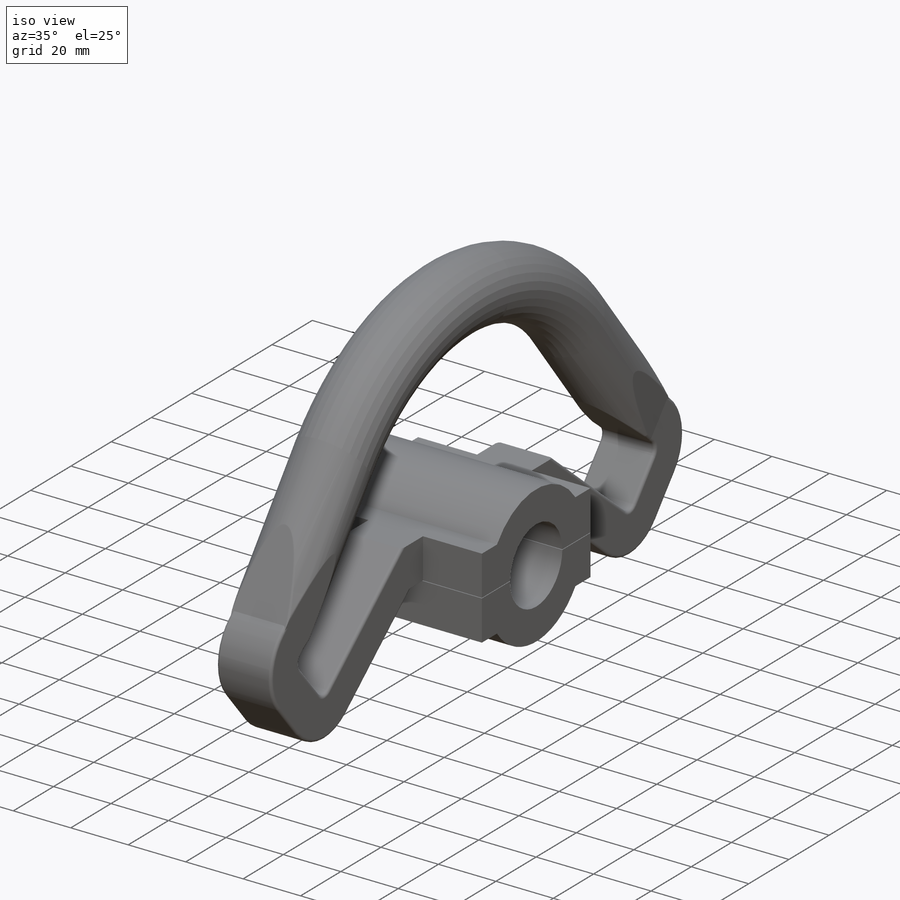
[diagram: iso view]
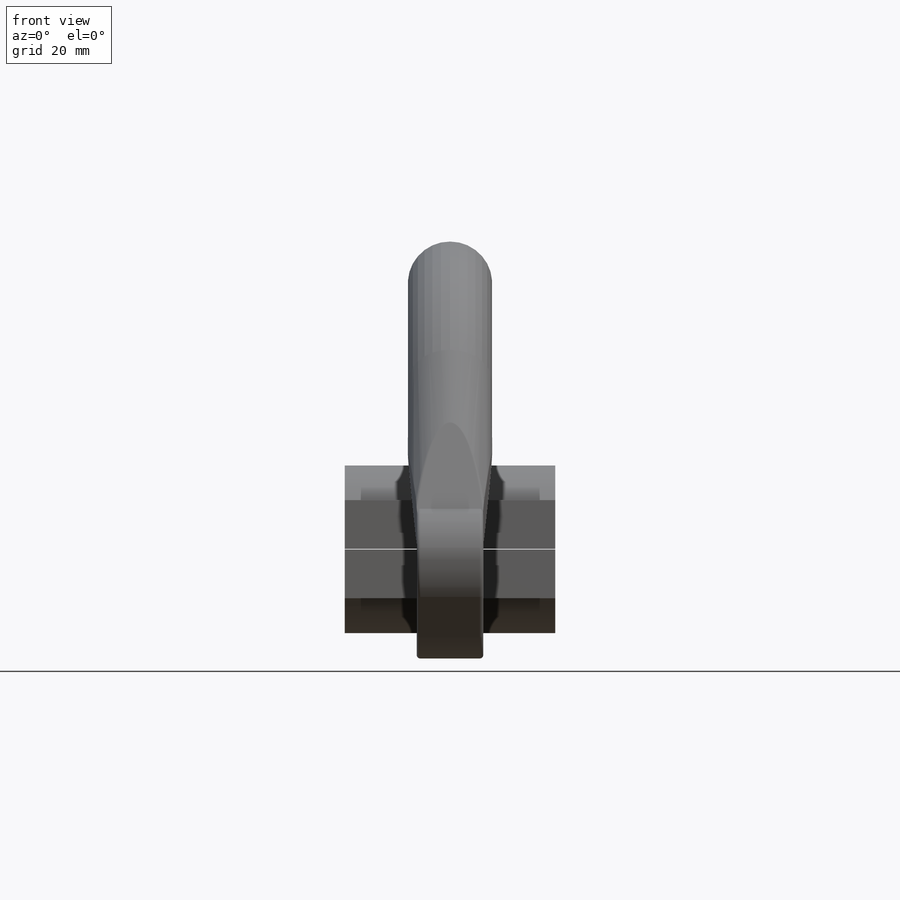
[diagram: front view]
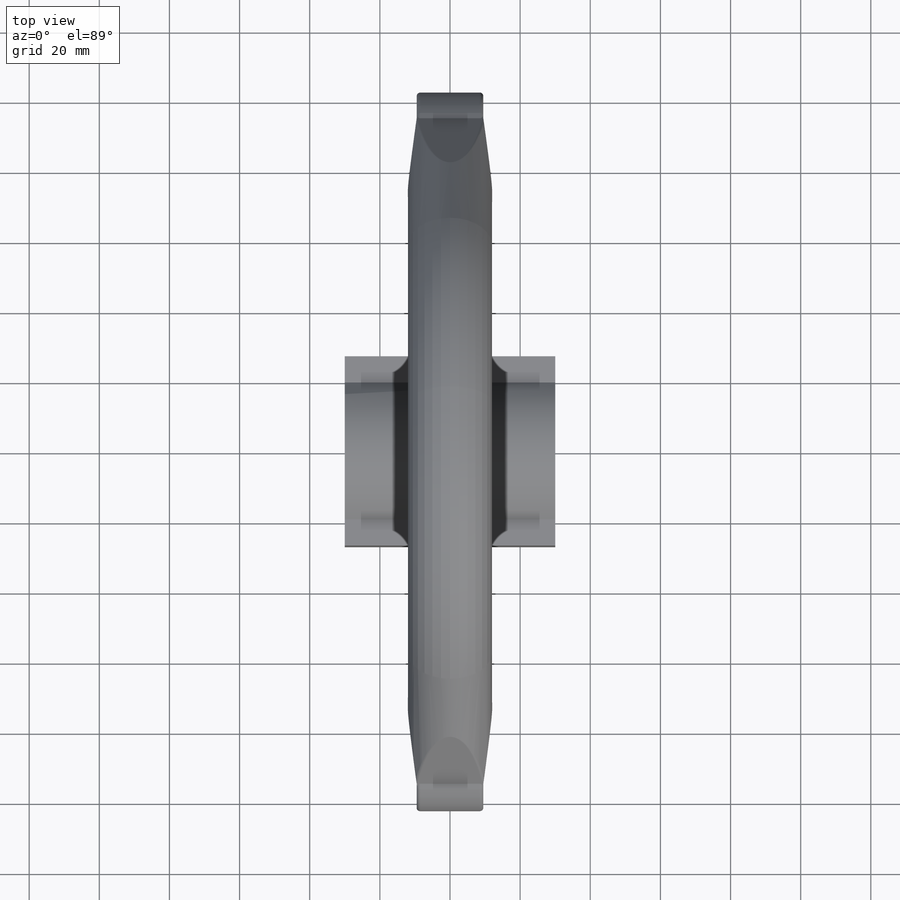
[diagram: top view]
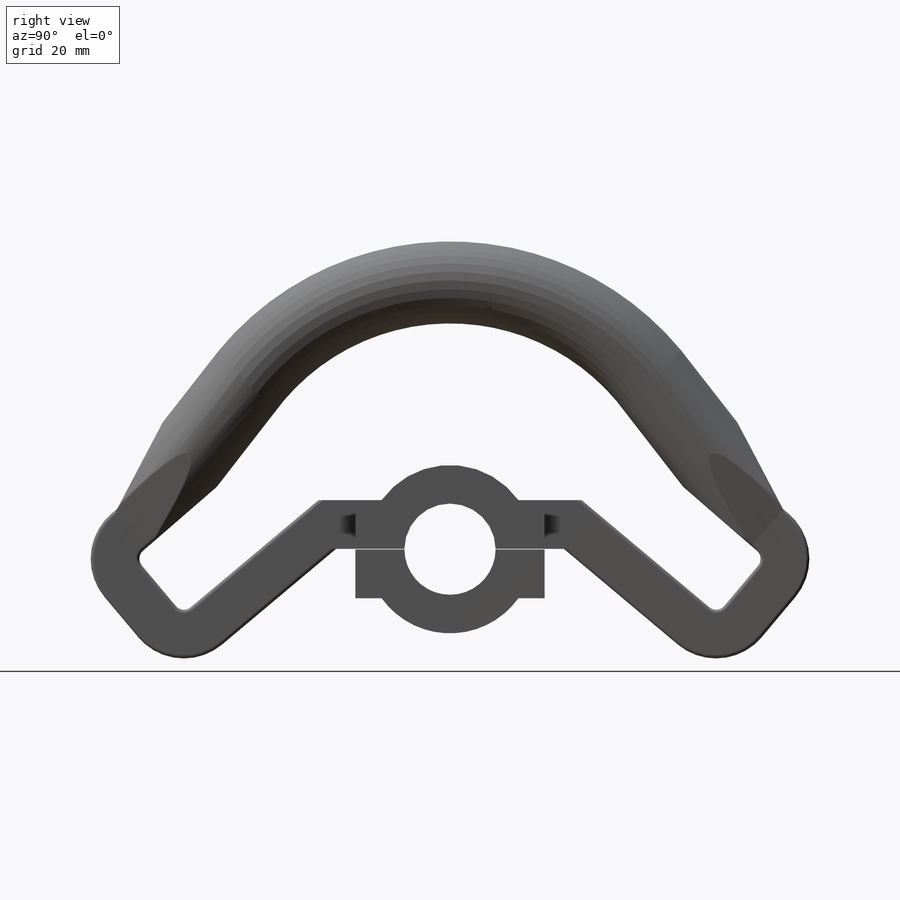
[diagram: right view]
SOLIDWORKS PART (.sldprt)
format: sldprt  version: not decoded by parser v0  size: 596,480 bytes
history: native  units: mm
features: sketch x8, plane x3, cut_extrude x3, fillet x3, sweep x2, material x1, extrude x1, mirror x1 (+10 scaffold rows collapsed)
feature tree (32):
  scaffold x10  (default folders/planes/origin — collapsed)
  material  "材质 <未指定>"
  plane  "前视基准面"
  plane  "上视基准面"
  plane  "右视基准面"
  sketch  "草图1"  dims[c1.D3=48.0mm c1.D4=26.0mm c1.D1=54.0mm c1.D2=15.0mm c2.D1=54.0mm c2.D2=28.0mm]
  extrude  "凸台-拉伸1"  Depth=60mm
  sketch  "草图4"  dims[D1=0.2mm]
  cut_extrude  "切除-拉伸2"  [1 undecoded]
  sketch  "草图5"  dims[D1=19.0mm]
  sketch  "草图6"  dims[c1.D6=10.0mm c1.D7=10.0mm c1.D1=110.0mm c1.D2=8.0mm c1.D3=55.0mm c1.D4=~26.895248mm c2.D4=140.0deg c2.D5=56.0mm c2.D6=15.0mm c2.D1=35.0mm c3.D5=12.0mm]
  sweep  "扫描2"
  sketch  "草图7"  dims[c1.D1=52.0mm c1.D2=~43.026146mm c2.D2=78.0deg c2.D3=63.0mm c2.D1=52.0mm]
  sketch  "草图8"  dims[D1=24.0mm]
  sweep  "扫描3"
  sketch  "草图11"
  cut_extrude  "切除-拉伸3"  Depth=30mm
  sketch  "草图12"
  cut_extrude  "切除-拉伸4"  Depth=20mm
  mirror  "镜向3"
  fillet  "圆角2"  Radius=1mm
  fillet  "圆角3"  Radius=1mm
  fillet  "圆角4"  Radius=1mm
decode coverage: 12 of 18 modeling features carry decoded parameters
note: ~ marks probable driven/reference dimensions
note: 1 parameter value undecoded
note: suppression state not decoded; provenance and decode notes live in map.json
